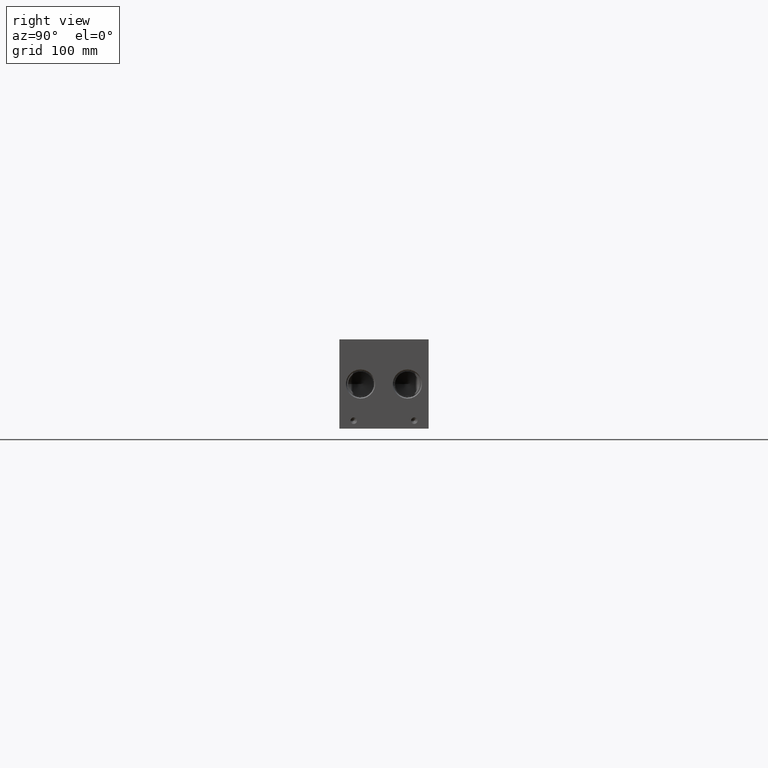
[diagram: clean part render]
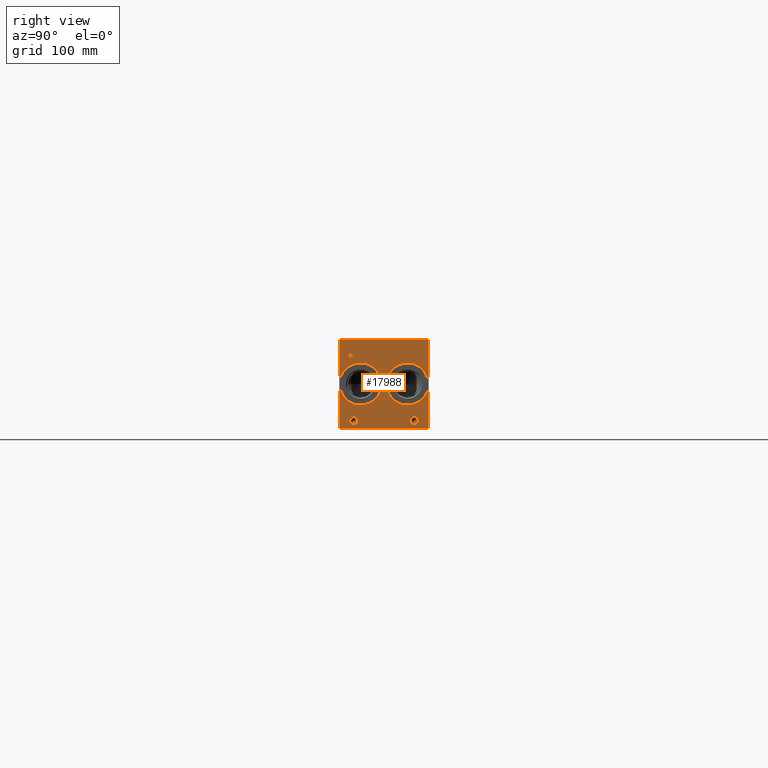
[diagram: same view with one face highlighted and labeled with its STEP entity id]
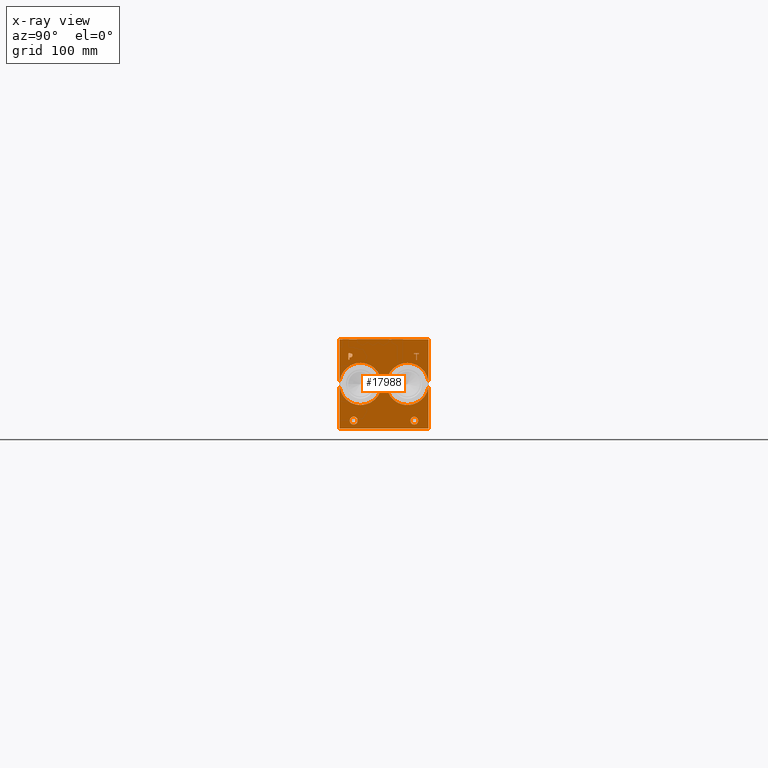
[diagram: x-ray of the same camera — body ghosted, the highlighted face saturated]
A machine part, right view. The second image highlights one B-rep face of the part: STEP entity #17988.
The next image is the same camera in x-ray: the body ghosted, the highlighted face saturated — about 0% of this face is hidden behind the body in this view.
In plain terms, the highlighted planar face has unit normal (1, 0, 0).
Its self-contained STEP definition (entity closure, byte-faithful):
#299=CIRCLE('',#18987,3.9624);
#300=CIRCLE('',#18988,3.9624);
#301=CIRCLE('',#18989,3.9624);
#302=CIRCLE('',#18990,3.9624);
#303=CIRCLE('',#18991,21.0185);
#304=CIRCLE('',#18992,21.0185);
#305=CIRCLE('',#18993,21.0185);
#306=CIRCLE('',#18994,21.0185);
#919=FACE_BOUND('',#2803,.T.);
#920=FACE_BOUND('',#2804,.T.);
#921=FACE_BOUND('',#2805,.T.);
#922=FACE_BOUND('',#2806,.T.);
#923=FACE_BOUND('',#2807,.T.);
#924=FACE_BOUND('',#2808,.T.);
#1122=B_SPLINE_CURVE_WITH_KNOTS('',2,(#24861,#24862,#24863,#24864),
 .UNSPECIFIED.,.F.,.F.,(3,1,3),(0.,1.,2.),.UNSPECIFIED.);
#1124=B_SPLINE_CURVE_WITH_KNOTS('',2,(#24882,#24883,#24884,#24885),
 .UNSPECIFIED.,.F.,.F.,(3,1,3),(0.,1.,2.),.UNSPECIFIED.);
#1126=B_SPLINE_CURVE_WITH_KNOTS('',2,(#24931,#24932,#24933,#24934),
 .UNSPECIFIED.,.F.,.F.,(3,1,3),(0.,1.,2.),.UNSPECIFIED.);
#1128=B_SPLINE_CURVE_WITH_KNOTS('',2,(#24949,#24950,#24951,#24952),
 .UNSPECIFIED.,.F.,.F.,(3,1,3),(0.,1.,2.),.UNSPECIFIED.);
#1809=FACE_OUTER_BOUND('',#2802,.T.);
#2802=EDGE_LOOP('',(#11711,#11712,#11713,#11714));
#2803=EDGE_LOOP('',(#11715,#11716,#11717,#11718,#11719,#11720,#11721,#11722));
#2804=EDGE_LOOP('',(#11723,#11724));
#2805=EDGE_LOOP('',(#11725,#11726));
#2806=EDGE_LOOP('',(#11727,#11728));
#2807=EDGE_LOOP('',(#11729,#11730));
#2808=EDGE_LOOP('',(#11731,#11732,#11733,#11734,#11735,#11736,#11737,#11738,
#11739));
#3963=LINE('',#24711,#5536);
#3967=LINE('',#24719,#5540);
#3970=LINE('',#24725,#5543);
#3973=LINE('',#24731,#5546);
#3976=LINE('',#24737,#5549);
#3979=LINE('',#24743,#5552);
#3982=LINE('',#24749,#5555);
#3985=LINE('',#24754,#5558);
#4003=LINE('',#24894,#5576);
#4006=LINE('',#24900,#5579);
#4009=LINE('',#24906,#5582);
#4012=LINE('',#24912,#5585);
#4015=LINE('',#24918,#5588);
#4019=LINE('',#24961,#5592);
#4020=LINE('',#24963,#5593);
#4021=LINE('',#24965,#5594);
#4022=LINE('',#24966,#5595);
#5536=VECTOR('',#20360,10.);
#5540=VECTOR('',#20366,10.);
#5543=VECTOR('',#20371,10.);
#5546=VECTOR('',#20376,10.);
#5549=VECTOR('',#20381,10.);
#5552=VECTOR('',#20386,10.);
#5555=VECTOR('',#20391,10.);
#5558=VECTOR('',#20396,10.);
#5576=VECTOR('',#20424,10.);
#5579=VECTOR('',#20429,10.);
#5582=VECTOR('',#20434,10.);
#5585=VECTOR('',#20439,10.);
#5588=VECTOR('',#20444,10.);
#5592=VECTOR('',#20452,10.);
#5593=VECTOR('',#20453,10.);
#5594=VECTOR('',#20454,10.);
#5595=VECTOR('',#20455,10.);
#7109=VERTEX_POINT('',#24709);
#7110=VERTEX_POINT('',#24710);
#7113=VERTEX_POINT('',#24718);
#7115=VERTEX_POINT('',#24724);
#7117=VERTEX_POINT('',#24730);
#7119=VERTEX_POINT('',#24736);
#7121=VERTEX_POINT('',#24742);
#7123=VERTEX_POINT('',#24748);
#7139=VERTEX_POINT('',#24859);
#7140=VERTEX_POINT('',#24860);
#7143=VERTEX_POINT('',#24881);
#7145=VERTEX_POINT('',#24893);
#7147=VERTEX_POINT('',#24899);
#7149=VERTEX_POINT('',#24905);
#7151=VERTEX_POINT('',#24911);
#7153=VERTEX_POINT('',#24917);
#7155=VERTEX_POINT('',#24930);
#7157=VERTEX_POINT('',#24959);
#7158=VERTEX_POINT('',#24960);
#7159=VERTEX_POINT('',#24962);
#7160=VERTEX_POINT('',#24964);
#7161=VERTEX_POINT('',#24967);
#7162=VERTEX_POINT('',#24968);
#7163=VERTEX_POINT('',#24971);
#7164=VERTEX_POINT('',#24972);
#7165=VERTEX_POINT('',#24975);
#7166=VERTEX_POINT('',#24976);
#7167=VERTEX_POINT('',#24979);
#7168=VERTEX_POINT('',#24980);
#8953=EDGE_CURVE('',#7109,#7110,#3963,.T.);
#8957=EDGE_CURVE('',#7113,#7109,#3967,.T.);
#8960=EDGE_CURVE('',#7115,#7113,#3970,.T.);
#8963=EDGE_CURVE('',#7117,#7115,#3973,.T.);
#8966=EDGE_CURVE('',#7119,#7117,#3976,.T.);
#8969=EDGE_CURVE('',#7121,#7119,#3979,.T.);
#8972=EDGE_CURVE('',#7123,#7121,#3982,.T.);
#8975=EDGE_CURVE('',#7110,#7123,#3985,.T.);
#8998=EDGE_CURVE('',#7139,#7140,#1122,.T.);
#9002=EDGE_CURVE('',#7143,#7139,#1124,.T.);
#9005=EDGE_CURVE('',#7145,#7143,#4003,.T.);
#9008=EDGE_CURVE('',#7147,#7145,#4006,.T.);
#9011=EDGE_CURVE('',#7149,#7147,#4009,.T.);
#9014=EDGE_CURVE('',#7151,#7149,#4012,.T.);
#9017=EDGE_CURVE('',#7153,#7151,#4015,.T.);
#9020=EDGE_CURVE('',#7155,#7153,#1126,.T.);
#9023=EDGE_CURVE('',#7140,#7155,#1128,.T.);
#9025=EDGE_CURVE('',#7157,#7158,#4019,.T.);
#9026=EDGE_CURVE('',#7158,#7159,#4020,.T.);
#9027=EDGE_CURVE('',#7160,#7159,#4021,.T.);
#9028=EDGE_CURVE('',#7157,#7160,#4022,.T.);
#9029=EDGE_CURVE('',#7161,#7162,#299,.T.);
#9030=EDGE_CURVE('',#7162,#7161,#300,.T.);
#9031=EDGE_CURVE('',#7163,#7164,#301,.T.);
#9032=EDGE_CURVE('',#7164,#7163,#302,.T.);
#9033=EDGE_CURVE('',#7165,#7166,#303,.T.);
#9034=EDGE_CURVE('',#7166,#7165,#304,.T.);
#9035=EDGE_CURVE('',#7167,#7168,#305,.T.);
#9036=EDGE_CURVE('',#7168,#7167,#306,.T.);
#11711=ORIENTED_EDGE('',*,*,#9025,.T.);
#11712=ORIENTED_EDGE('',*,*,#9026,.T.);
#11713=ORIENTED_EDGE('',*,*,#9027,.F.);
#11714=ORIENTED_EDGE('',*,*,#9028,.F.);
#11715=ORIENTED_EDGE('',*,*,#8953,.T.);
#11716=ORIENTED_EDGE('',*,*,#8975,.T.);
#11717=ORIENTED_EDGE('',*,*,#8972,.T.);
#11718=ORIENTED_EDGE('',*,*,#8969,.T.);
#11719=ORIENTED_EDGE('',*,*,#8966,.T.);
#11720=ORIENTED_EDGE('',*,*,#8963,.T.);
#11721=ORIENTED_EDGE('',*,*,#8960,.T.);
#11722=ORIENTED_EDGE('',*,*,#8957,.T.);
#11723=ORIENTED_EDGE('',*,*,#9029,.T.);
#11724=ORIENTED_EDGE('',*,*,#9030,.T.);
#11725=ORIENTED_EDGE('',*,*,#9031,.T.);
#11726=ORIENTED_EDGE('',*,*,#9032,.T.);
#11727=ORIENTED_EDGE('',*,*,#9033,.T.);
#11728=ORIENTED_EDGE('',*,*,#9034,.T.);
#11729=ORIENTED_EDGE('',*,*,#9035,.T.);
#11730=ORIENTED_EDGE('',*,*,#9036,.T.);
#11731=ORIENTED_EDGE('',*,*,#8998,.T.);
#11732=ORIENTED_EDGE('',*,*,#9023,.T.);
#11733=ORIENTED_EDGE('',*,*,#9020,.T.);
#11734=ORIENTED_EDGE('',*,*,#9017,.T.);
#11735=ORIENTED_EDGE('',*,*,#9014,.T.);
#11736=ORIENTED_EDGE('',*,*,#9011,.T.);
#11737=ORIENTED_EDGE('',*,*,#9008,.T.);
#11738=ORIENTED_EDGE('',*,*,#9005,.T.);
#11739=ORIENTED_EDGE('',*,*,#9002,.T.);
#16885=PLANE('',#18986);
#17988=ADVANCED_FACE('',(#1809,#919,#920,#921,#922,#923,#924),#16885,.T.);
#18986=AXIS2_PLACEMENT_3D('',#24958,#20450,#20451);
#18987=AXIS2_PLACEMENT_3D('',#24969,#20456,#20457);
#18988=AXIS2_PLACEMENT_3D('',#24970,#20458,#20459);
#18989=AXIS2_PLACEMENT_3D('',#24973,#20460,#20461);
#18990=AXIS2_PLACEMENT_3D('',#24974,#20462,#20463);
#18991=AXIS2_PLACEMENT_3D('',#24977,#20464,#20465);
#18992=AXIS2_PLACEMENT_3D('',#24978,#20466,#20467);
#18993=AXIS2_PLACEMENT_3D('',#24981,#20468,#20469);
#18994=AXIS2_PLACEMENT_3D('',#24982,#20470,#20471);
#20360=DIRECTION('',(0.,-1.,0.));
#20366=DIRECTION('',(0.,0.,-1.));
#20371=DIRECTION('',(0.,-1.,0.));
#20376=DIRECTION('',(0.,0.,-1.));
#20381=DIRECTION('',(0.,1.,0.));
#20386=DIRECTION('',(0.,0.,1.));
#20391=DIRECTION('',(0.,-1.,0.));
#20396=DIRECTION('',(0.,0.,1.));
#20424=DIRECTION('',(0.,1.,0.));
#20429=DIRECTION('',(0.,0.,1.));
#20434=DIRECTION('',(0.,-1.,0.));
#20439=DIRECTION('',(0.,0.,-1.));
#20444=DIRECTION('',(0.,-1.,0.));
#20450=DIRECTION('center_axis',(1.,0.,0.));
#20451=DIRECTION('ref_axis',(0.,1.,0.));
#20452=DIRECTION('',(0.,1.,0.));
#20453=DIRECTION('',(0.,0.,1.));
#20454=DIRECTION('',(0.,1.,0.));
#20455=DIRECTION('',(0.,0.,1.));
#20456=DIRECTION('center_axis',(-1.,0.,0.));
#20457=DIRECTION('ref_axis',(0.,1.,0.));
#20458=DIRECTION('center_axis',(-1.,0.,0.));
#20459=DIRECTION('ref_axis',(0.,1.,0.));
#20460=DIRECTION('center_axis',(-1.,0.,0.));
#20461=DIRECTION('ref_axis',(0.,1.,0.));
#20462=DIRECTION('center_axis',(-1.,0.,0.));
#20463=DIRECTION('ref_axis',(0.,1.,0.));
#20464=DIRECTION('center_axis',(-1.,0.,0.));
#20465=DIRECTION('ref_axis',(0.,0.,-1.));
#20466=DIRECTION('center_axis',(-1.,0.,0.));
#20467=DIRECTION('ref_axis',(0.,0.,-1.));
#20468=DIRECTION('center_axis',(-1.,0.,0.));
#20469=DIRECTION('ref_axis',(0.,0.,-1.));
#20470=DIRECTION('center_axis',(-1.,0.,0.));
#20471=DIRECTION('ref_axis',(0.,0.,-1.));
#24709=CARTESIAN_POINT('',(717.55,77.137165271453,68.58));
#24710=CARTESIAN_POINT('',(717.55,76.2932430799135,68.58));
#24711=CARTESIAN_POINT('',(717.55,38.5685826357265,68.58));
#24718=CARTESIAN_POINT('',(717.55,77.137165271453,74.1787033194816));
#24719=CARTESIAN_POINT('',(717.55,77.137165271453,37.0893516597408));
#24724=CARTESIAN_POINT('',(717.55,79.2675542183881,74.1787033194816));
#24725=CARTESIAN_POINT('',(717.55,39.633777109194,74.1787033194816));
#24730=CARTESIAN_POINT('',(717.55,79.2675542183881,74.9299999046326));
#24731=CARTESIAN_POINT('',(717.55,79.2675542183881,37.4649999523163));
#24736=CARTESIAN_POINT('',(717.55,74.1628541329784,74.9299999046326));
#24737=CARTESIAN_POINT('',(717.55,37.0814270664892,74.9299999046326));
#24742=CARTESIAN_POINT('',(717.55,74.1628541329784,74.1787033194816));
#24743=CARTESIAN_POINT('',(717.55,74.1628541329784,37.0893516597408));
#24748=CARTESIAN_POINT('',(717.55,76.2932430799135,74.1787033194816));
#24749=CARTESIAN_POINT('',(717.55,38.1466215399568,74.1787033194816));
#24754=CARTESIAN_POINT('',(717.55,76.2932430799135,34.29));
#24859=CARTESIAN_POINT('',(717.55,12.2825672023594,74.5337681439707));
#24860=CARTESIAN_POINT('',(717.55,13.039009654532,73.015737372604));
#24861=CARTESIAN_POINT('Ctrl Pts',(717.55,12.2825672023594,74.5337681439707));
#24862=CARTESIAN_POINT('Ctrl Pts',(717.55,12.6376320268486,74.2919123939564));
#24863=CARTESIAN_POINT('Ctrl Pts',(717.55,13.039009654532,73.5457616758269));
#24864=CARTESIAN_POINT('Ctrl Pts',(717.55,13.039009654532,73.015737372604));
#24881=CARTESIAN_POINT('',(717.55,10.6204521543883,74.9299999046326));
#24882=CARTESIAN_POINT('Ctrl Pts',(717.55,10.6204521543883,74.9299999046326));
#24883=CARTESIAN_POINT('Ctrl Pts',(717.55,11.1864975267624,74.9299999046326));
#24884=CARTESIAN_POINT('Ctrl Pts',(717.55,11.978961048086,74.7447486918556));
#24885=CARTESIAN_POINT('Ctrl Pts',(717.55,12.2825672023594,74.5337681439707));
#24893=CARTESIAN_POINT('',(717.55,9.02523337769779,74.9299999046326));
#24894=CARTESIAN_POINT('',(717.55,4.51261668884889,74.9299999046326));
#24899=CARTESIAN_POINT('',(717.55,9.02523337769779,68.58));
#24900=CARTESIAN_POINT('',(717.55,9.02523337769779,34.29));
#24905=CARTESIAN_POINT('',(717.55,9.86915556923729,68.58));
#24906=CARTESIAN_POINT('',(717.55,4.93457778461864,68.58));
#24911=CARTESIAN_POINT('',(717.55,9.86915556923729,70.9470988299279));
#24912=CARTESIAN_POINT('',(717.55,9.86915556923729,35.4735494149639));
#24917=CARTESIAN_POINT('',(717.55,10.5844310852372,70.9470988299279));
#24918=CARTESIAN_POINT('',(717.55,5.29221554261861,70.9470988299279));
#24930=CARTESIAN_POINT('',(717.55,12.4832560162011,71.6057698086904));
#24931=CARTESIAN_POINT('Ctrl Pts',(717.55,12.4832560162011,71.6057698086904));
#24932=CARTESIAN_POINT('Ctrl Pts',(717.55,12.1539205268198,71.2815801863307));
#24933=CARTESIAN_POINT('Ctrl Pts',(717.55,11.2636855320861,70.9470988299279));
#24934=CARTESIAN_POINT('Ctrl Pts',(717.55,10.5844310852372,70.9470988299279));
#24949=CARTESIAN_POINT('Ctrl Pts',(717.55,13.039009654532,73.015737372604));
#24950=CARTESIAN_POINT('Ctrl Pts',(717.55,13.039009654532,72.6040680108774));
#24951=CARTESIAN_POINT('Ctrl Pts',(717.55,12.7456952343018,71.8630631597695));
#24952=CARTESIAN_POINT('Ctrl Pts',(717.55,12.4832560162011,71.6057698086904));
#24958=CARTESIAN_POINT('Origin',(717.55,0.,0.));
#24959=CARTESIAN_POINT('',(717.55,0.,0.));
#24960=CARTESIAN_POINT('',(717.55,88.9,0.));
#24961=CARTESIAN_POINT('',(717.55,0.,0.));
#24962=CARTESIAN_POINT('',(717.55,88.9,88.9));
#24963=CARTESIAN_POINT('',(717.55,88.9,0.));
#24964=CARTESIAN_POINT('',(717.55,0.,88.9));
#24965=CARTESIAN_POINT('',(717.55,0.,88.9));
#24966=CARTESIAN_POINT('',(717.55,0.,0.));
#24967=CARTESIAN_POINT('',(717.55,78.5876,7.9248));
#24968=CARTESIAN_POINT('',(717.55,70.6628,7.9248));
#24969=CARTESIAN_POINT('Origin',(717.55,74.6252,7.9248));
#24970=CARTESIAN_POINT('Origin',(717.55,74.6252,7.9248));
#24971=CARTESIAN_POINT('',(717.55,18.2372,7.9248));
#24972=CARTESIAN_POINT('',(717.55,10.3124,7.9248));
#24973=CARTESIAN_POINT('Origin',(717.55,14.2748,7.9248));
#24974=CARTESIAN_POINT('Origin',(717.55,14.2748,7.9248));
#24975=CARTESIAN_POINT('',(717.55,21.082,23.4315));
#24976=CARTESIAN_POINT('',(717.55,21.082,65.4685));
#24977=CARTESIAN_POINT('Origin',(717.55,21.082,44.45));
#24978=CARTESIAN_POINT('Origin',(717.55,21.082,44.45));
#24979=CARTESIAN_POINT('',(717.55,67.818,23.4315));
#24980=CARTESIAN_POINT('',(717.55,67.818,65.4685));
#24981=CARTESIAN_POINT('Origin',(717.55,67.818,44.45));
#24982=CARTESIAN_POINT('Origin',(717.55,67.818,44.45));